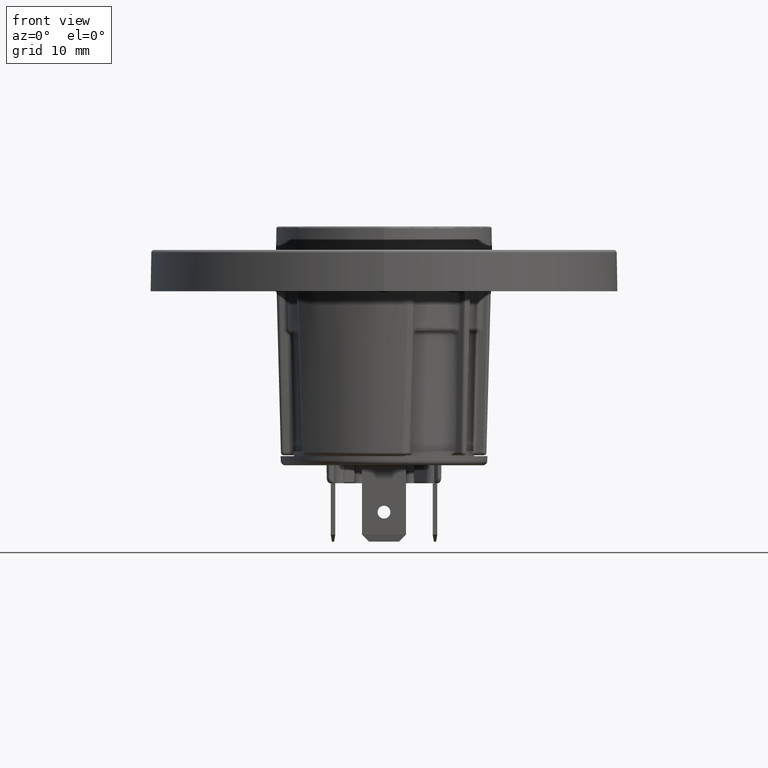
[diagram: clean part render]
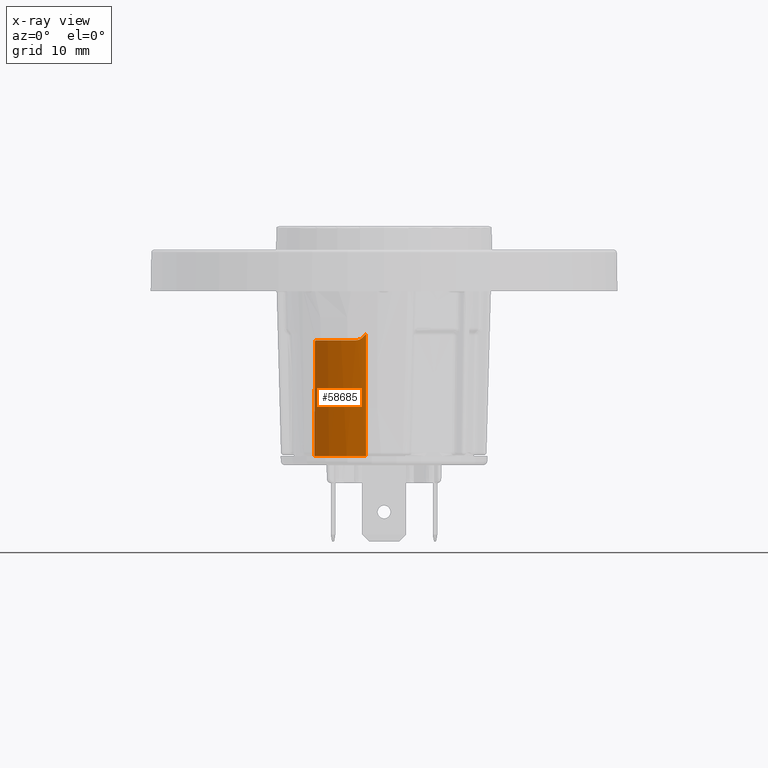
[diagram: x-ray — body ghosted, one internal face saturated and labeled with its STEP entity id]
A machine part, front view, then the same camera in x-ray: the body is ghosted and one INTERNAL B-rep face — a face not visible from any outside direction — is saturated and labeled: STEP entity #58685.
In plain terms, the highlighted cylindrical surface (partial cylindrical patch) has radius 9.7999 mm, axis along (0, 0, 1).
Its self-contained STEP definition (entity closure, byte-faithful):
#58342=CARTESIAN_POINT('',(-2.357106781187E0,-9.512242898996E0,
-5.057106781187E0));
#58343=CARTESIAN_POINT('',(-2.219833931577E0,-9.546258721355E0,
-4.919833931577E0));
#58344=CARTESIAN_POINT('',(-2.082215976947E0,-9.577207644061E0,
-4.782215976947E0));
#58345=CARTESIAN_POINT('',(-1.944257787817E0,-9.605132950768E0,
-4.644257787817E0));
#58347=DIRECTION('',(0.E0,0.E0,1.E0));
#58348=VECTOR('',#58347,1.330574221218E1);
#58349=CARTESIAN_POINT('',(-1.944257787817E0,-9.605132950768E0,-1.795E1));
#58350=LINE('',#58349,#58348);
#58351=CARTESIAN_POINT('',(-2.357106781187E0,-9.512242898996E0,
-5.057106781187E0));
#58352=CARTESIAN_POINT('',(-2.387453196481E0,-9.504723143452E0,
-5.087453196481E0));
#58353=CARTESIAN_POINT('',(-2.452256579870E0,-9.488358775332E0,
-5.144466032937E0));
#58354=CARTESIAN_POINT('',(-2.561107921976E0,-9.459600312141E0,
-5.217523953461E0));
#58355=CARTESIAN_POINT('',(-2.678042299831E0,-9.427195648642E0,
-5.275484765793E0));
#58356=CARTESIAN_POINT('',(-2.801796210947E0,-9.391194901737E0,
-5.317949628522E0));
#58357=CARTESIAN_POINT('',(-2.931883762328E0,-9.351423694811E0,
-5.344162254905E0));
#58358=CARTESIAN_POINT('',(-3.020024242451E0,-9.323107594278E0,-5.35E0));
#58359=CARTESIAN_POINT('',(-3.064213562373E0,-9.308561252502E0,-5.35E0));
#58374=CARTESIAN_POINT('',(0.E0,0.E0,-5.35E0));
#58375=DIRECTION('',(0.E0,0.E0,1.E0));
#58376=DIRECTION('',(-7.534142540692E-1,-6.575461670221E-1,0.E0));
#58377=AXIS2_PLACEMENT_3D('',#58374,#58375,#58376);
#58435=CARTESIAN_POINT('',(0.E0,0.E0,-1.795E1));
#58436=DIRECTION('',(0.E0,0.E0,1.E0));
#58437=DIRECTION('',(-7.740148476964E-1,-6.331674466881E-1,0.E0));
#58438=AXIS2_PLACEMENT_3D('',#58435,#58436,#58437);
#58440=CARTESIAN_POINT('',(-7.585294854595E0,-6.204999542004E0,-1.795E1));
#58441=CARTESIAN_POINT('',(-7.562047222491E0,-6.233418584259E0,
-1.381608523308E1));
#58442=CARTESIAN_POINT('',(-7.538664605174E0,-6.261676761964E0,
-9.682170130024E0));
#58443=CARTESIAN_POINT('',(-7.515147834046E0,-6.289775065918E0,
-5.548254692899E0));
#58461=CARTESIAN_POINT('',(-7.383410385185E0,-6.443909405892E0,-5.35E0));
#58462=CARTESIAN_POINT('',(-7.393375333002E0,-6.432491601177E0,-5.35E0));
#58463=CARTESIAN_POINT('',(-7.413221207317E0,-6.409643376084E0,
-5.353382035356E0));
#58464=CARTESIAN_POINT('',(-7.441225759201E0,-6.377102764735E0,
-5.368177167097E0));
#58465=CARTESIAN_POINT('',(-7.466407807980E0,-6.347590500815E0,
-5.392083420057E0));
#58466=CARTESIAN_POINT('',(-7.487530162809E0,-6.322648175007E0,
-5.424271010338E0));
#58467=CARTESIAN_POINT('',(-7.503083352280E0,-6.304171749944E0,
-5.462160195535E0));
#58468=CARTESIAN_POINT('',(-7.512764918877E0,-6.292623548704E0,
-5.504076852530E0));
#58469=CARTESIAN_POINT('',(-7.515064052839E0,-6.289875169364E0,
-5.533527142855E0));
#58470=CARTESIAN_POINT('',(-7.515147834046E0,-6.289775065918E0,
-5.548254692900E0));
#58484=CARTESIAN_POINT('',(-7.383410385185E0,-6.443909405892E0,-5.35E0));
#58485=CARTESIAN_POINT('',(-3.064213562373E0,-9.308561252502E0,-5.35E0));
#58486=VERTEX_POINT('',#58484);
#58487=VERTEX_POINT('',#58485);
#58488=VERTEX_POINT('',#58440);
#58489=VERTEX_POINT('',#58443);
#58490=VERTEX_POINT('',#58351);
#58492=CARTESIAN_POINT('',(-1.944257787817E0,-9.605132950768E0,
-4.644257787817E0));
#58494=VERTEX_POINT('',#58492);
#58499=CARTESIAN_POINT('',(-1.944257787817E0,-9.605132950768E0,-1.795E1));
#58500=VERTEX_POINT('',#58499);
#58666=CARTESIAN_POINT('',(0.E0,0.E0,-1.795E1));
#58667=DIRECTION('',(0.E0,0.E0,1.E0));
#58668=DIRECTION('',(1.E0,0.E0,0.E0));
#58669=AXIS2_PLACEMENT_3D('',#58666,#58667,#58668);
#58670=CYLINDRICAL_SURFACE('',#58669,9.799934558323E0);
#58671=ORIENTED_EDGE('',*,*,#58657,.T.);
#58672=ORIENTED_EDGE('',*,*,#58646,.F.);
#58674=ORIENTED_EDGE('',*,*,#58673,.T.);
#58676=ORIENTED_EDGE('',*,*,#58675,.F.);
#58678=ORIENTED_EDGE('',*,*,#58677,.T.);
#58680=ORIENTED_EDGE('',*,*,#58679,.F.);
#58682=ORIENTED_EDGE('',*,*,#58681,.T.);
#58683=EDGE_LOOP('',(#58671,#58672,#58674,#58676,#58678,#58680,#58682));
#58684=FACE_OUTER_BOUND('',#58683,.F.);
#58685=ADVANCED_FACE('',(#58684),#58670,.F.);
#58346=B_SPLINE_CURVE_WITH_KNOTS('',3,(#58342,#58343,#58344,#58345),
.UNSPECIFIED.,.F.,.F.,(4,4),(0.E0,1.E0),.UNSPECIFIED.);
#58360=B_SPLINE_CURVE_WITH_KNOTS('',3,(#58351,#58352,#58353,#58354,#58355,
#58356,#58357,#58358,#58359),.UNSPECIFIED.,.F.,.F.,(4,1,1,1,1,1,4),(0.E0,
1.666666666667E-1,3.333333333333E-1,5.E-1,6.666666666667E-1,8.333333333333E-1,
1.E0),.UNSPECIFIED.);
#58378=CIRCLE('',#58377,9.799934558323E0);
#58439=CIRCLE('',#58438,9.799934558323E0);
#58444=B_SPLINE_CURVE_WITH_KNOTS('',3,(#58440,#58441,#58442,#58443),
.UNSPECIFIED.,.F.,.F.,(4,4),(0.E0,1.E0),.UNSPECIFIED.);
#58471=B_SPLINE_CURVE_WITH_KNOTS('',3,(#58461,#58462,#58463,#58464,#58465,
#58466,#58467,#58468,#58469,#58470),.UNSPECIFIED.,.F.,.F.,(4,1,1,1,1,1,1,4),(
0.E0,1.428571428571E-1,2.857142857143E-1,4.285714285714E-1,5.714285714286E-1,
7.142857142857E-1,8.571428571429E-1,1.E0),.UNSPECIFIED.);
#58646=EDGE_CURVE('',#58490,#58494,#58346,.T.);
#58657=EDGE_CURVE('',#58500,#58494,#58350,.T.);
#58673=EDGE_CURVE('',#58490,#58487,#58360,.T.);
#58675=EDGE_CURVE('',#58486,#58487,#58378,.T.);
#58677=EDGE_CURVE('',#58486,#58489,#58471,.T.);
#58679=EDGE_CURVE('',#58488,#58489,#58444,.T.);
#58681=EDGE_CURVE('',#58488,#58500,#58439,.T.);